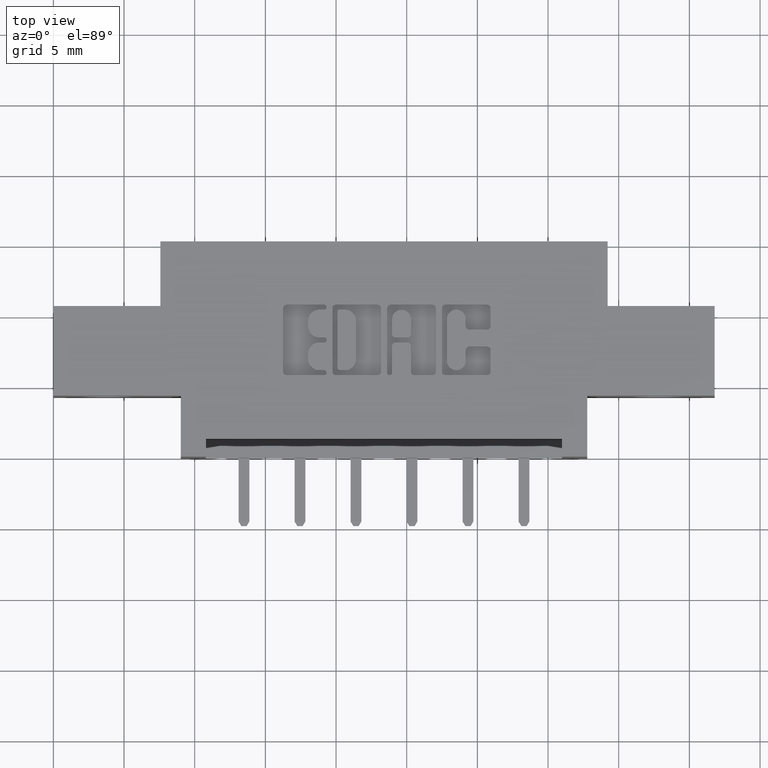
[diagram: clean part render]
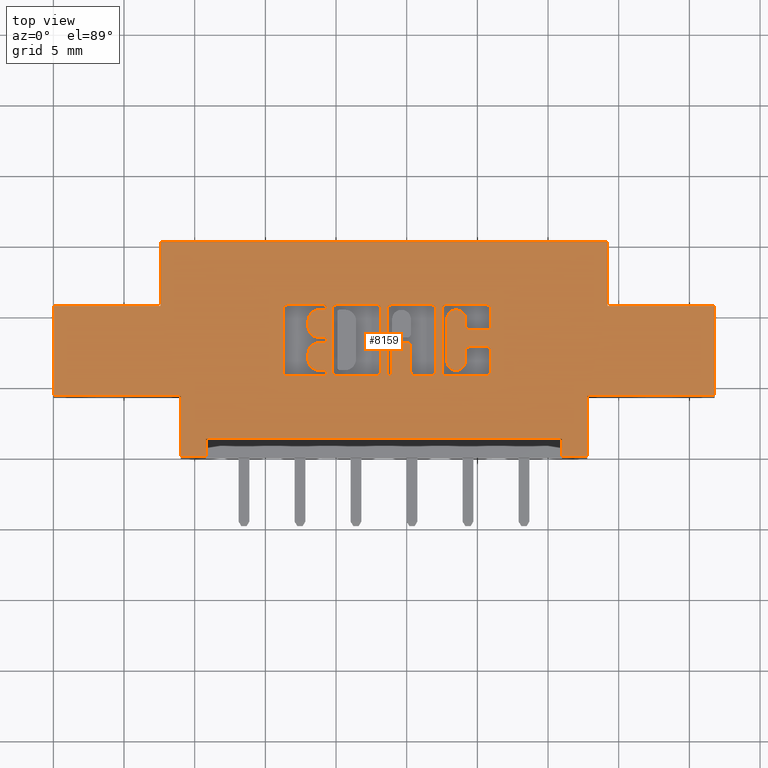
[diagram: same view with one face highlighted and labeled with its STEP entity id]
A machine part, top view. The second image highlights one B-rep face of the part: STEP entity #8159.
In plain terms, the highlighted planar face has unit normal (0, 0, -1).
Its self-contained STEP definition (entity closure, byte-faithful):
#5 = CARTESIAN_POINT ( 'NONE',  ( 1.055229290037010800, 0.2268432979619840200, 0.0000000000000000000 ) ) ;
#12 = EDGE_CURVE ( 'NONE', #7032, #9618, #5018, .T. ) ;
#17 = CIRCLE ( 'NONE', #453, 0.02625691779518022500 ) ;
#20 = CARTESIAN_POINT ( 'NONE',  ( 1.065044960240807000, 0.0000000000000000000, 0.0000000000000000000 ) ) ;
#40 = DIRECTION ( 'NONE',  ( 1.000000000000000000, 0.0000000000000000000, 0.0000000000000000000 ) ) ;
#55 = CARTESIAN_POINT ( 'NONE',  ( 0.9124112885716693100, 0.0000000000000000000, 0.0000000000000000000 ) ) ;
#59 = CARTESIAN_POINT ( 'NONE',  ( 1.095964321382818700, 0.0000000000000000000, 0.0000000000000000000 ) ) ;
#103 = CARTESIAN_POINT ( 'NONE',  ( 0.7541336065353357900, 0.2337142671046473500, 0.0000000000000000000 ) ) ;
#122 = CARTESIAN_POINT ( 'NONE',  ( 0.0000000000000000000, 0.2268432979619840200, 0.0000000000000000000 ) ) ;
#132 = EDGE_CURVE ( 'NONE', #8738, #8629, #2359, .T. ) ;
#146 = VERTEX_POINT ( 'NONE', #2982 ) ;
#148 = CARTESIAN_POINT ( 'NONE',  ( -0.0000000000000000000, 0.2268432979619826000, 0.0000000000000000000 ) ) ;
#152 = VERTEX_POINT ( 'NONE', #4583 ) ;
#158 = CARTESIAN_POINT ( 'NONE',  ( 0.9958444853039849500, 0.2366589681657872400, 0.0000000000000000000 ) ) ;
#174 = LINE ( 'NONE', #2364, #4251 ) ;
#184 = CARTESIAN_POINT ( 'NONE',  ( 0.7406370600050843400, 0.3181290308573562200, 0.0000000000000000000 ) ) ;
#199 = DIRECTION ( 'NONE',  ( 1.000000000000000000, 0.0000000000000000000, 0.0000000000000000000 ) ) ;
#225 = VERTEX_POINT ( 'NONE', #7214 ) ;
#235 = ORIENTED_EDGE ( 'NONE', *, *, #8944, .F. ) ;
#239 = DIRECTION ( 'NONE',  ( 1.000000000000000000, 0.0000000000000000000, 0.0000000000000000000 ) ) ;
#279 = ORIENTED_EDGE ( 'NONE', *, *, #12, .F. ) ;
#284 = DIRECTION ( 'NONE',  ( 1.000000000000000000, 0.0000000000000000000, 0.0000000000000000000 ) ) ;
#303 = VERTEX_POINT ( 'NONE', #8810 ) ;
#311 = AXIS2_PLACEMENT_3D ( 'NONE', #1815, #8325, #239 ) ;
#327 = ORIENTED_EDGE ( 'NONE', *, *, #3253, .F. ) ;
#379 = DIRECTION ( 'NONE',  ( 0.0000000000000000000, -1.000000000000000000, 0.0000000000000000000 ) ) ;
#388 = DIRECTION ( 'NONE',  ( 1.000000000000000000, 0.0000000000000000000, 0.0000000000000000000 ) ) ;
#397 = DIRECTION ( 'NONE',  ( -0.0000000000000000000, 0.0000000000000000000, 1.000000000000000000 ) ) ;
#410 = VERTEX_POINT ( 'NONE', #10411 ) ;
#424 = LINE ( 'NONE', #7182, #6921 ) ;
#447 = DIRECTION ( 'NONE',  ( -1.000000000000000000, 0.0000000000000000000, -2.449293598294705900E-016 ) ) ;
#453 = AXIS2_PLACEMENT_3D ( 'NONE', #10469, #3927, #6344 ) ;
#456 = VERTEX_POINT ( 'NONE', #3846 ) ;
#499 = CARTESIAN_POINT ( 'NONE',  ( 1.005660155507788200, 0.2366589681657872400, 0.0000000000000000000 ) ) ;
#503 = CARTESIAN_POINT ( 'NONE',  ( 0.9025956183678282000, 0.4133410318342093900, 0.0000000000000000000 ) ) ;
#507 = VECTOR ( 'NONE', #1535, 39.37007874015748100 ) ;
#519 = ORIENTED_EDGE ( 'NONE', *, *, #6554, .F. ) ;
#540 = VECTOR ( 'NONE', #3876, 39.37007874015748100 ) ;
#565 = CIRCLE ( 'NONE', #7960, 0.02625691779517367100 ) ;
#572 = CARTESIAN_POINT ( 'NONE',  ( 0.6498421106199383500, 0.4231567020380321300, 0.0000000000000000000 ) ) ;
#583 = VERTEX_POINT ( 'NONE', #8284 ) ;
#602 = CARTESIAN_POINT ( 'NONE',  ( 0.9124112885716693100, 0.2366589681657893500, 0.0000000000000000000 ) ) ;
#621 = DIRECTION ( 'NONE',  ( -0.0000000000000000000, 0.0000000000000000000, 1.000000000000000000 ) ) ;
#622 = VERTEX_POINT ( 'NONE', #8429 ) ;
#628 = AXIS2_PLACEMENT_3D ( 'NONE', #7436, #9047, #4157 ) ;
#658 = CARTESIAN_POINT ( 'NONE',  ( 1.092038053301299700, 0.4231567020380504500, 0.0000000000000000000 ) ) ;
#692 = VECTOR ( 'NONE', #9816, 39.37007874015748100 ) ;
#774 = VECTOR ( 'NONE', #7861, 39.37007874015748100 ) ;
#782 = DIRECTION ( 'NONE',  ( 1.000000000000000000, 0.0000000000000000000, 0.0000000000000000000 ) ) ;
#789 = VERTEX_POINT ( 'NONE', #7084 ) ;
#803 = ORIENTED_EDGE ( 'NONE', *, *, #3061, .F. ) ;
#811 = CIRCLE ( 'NONE', #2306, 0.03141014465218178200 ) ;
#814 = ORIENTED_EDGE ( 'NONE', *, *, #5875, .F. ) ;
#819 = CARTESIAN_POINT ( 'NONE',  ( 0.7541336065353357900, 0.2337142671046473500, 0.0000000000000000000 ) ) ;
#855 = VERTEX_POINT ( 'NONE', #5491 ) ;
#857 = DIRECTION ( 'NONE',  ( -0.0000000000000000000, 0.0000000000000000000, 1.000000000000000000 ) ) ;
#877 = AXIS2_PLACEMENT_3D ( 'NONE', #8940, #5756, #8187 ) ;
#896 = EDGE_CURVE ( 'NONE', #5455, #8738, #8952, .T. ) ;
#903 = DIRECTION ( 'NONE',  ( -0.0000000000000000000, 0.0000000000000000000, 1.000000000000000000 ) ) ;
#910 = VECTOR ( 'NONE', #8292, 39.37007874015748100 ) ;
#964 = EDGE_CURVE ( 'NONE', #7929, #9888, #5743, .T. ) ;
#972 = CARTESIAN_POINT ( 'NONE',  ( 0.7092269153529280300, 0.2719953808994897700, 0.0000000000000000000 ) ) ;
#974 = DIRECTION ( 'NONE',  ( -0.0000000000000000000, 0.0000000000000000000, 1.000000000000000000 ) ) ;
#1001 = ORIENTED_EDGE ( 'NONE', *, *, #10055, .T. ) ;
#1018 = DIRECTION ( 'NONE',  ( -0.0000000000000000000, 0.0000000000000000000, 1.000000000000000000 ) ) ;
#1037 = CIRCLE ( 'NONE', #7158, 0.009815670203811535700 ) ;
#1038 = CARTESIAN_POINT ( 'NONE',  ( 1.148478156973166100, 0.0000000000000000000, 0.0000000000000000000 ) ) ;
#1098 = VERTEX_POINT ( 'NONE', #184 ) ;
#1121 = DIRECTION ( 'NONE',  ( 0.0000000000000000000, -1.000000000000000000, 0.0000000000000000000 ) ) ;
#1137 = DIRECTION ( 'NONE',  ( -0.0000000000000000000, -1.000000000000000000, -0.0000000000000000000 ) ) ;
#1161 = DIRECTION ( 'NONE',  ( 1.000000000000000000, -0.0000000000000000000, -0.0000000000000000000 ) ) ;
#1174 = ORIENTED_EDGE ( 'NONE', *, *, #8277, .T. ) ;
#1183 = CIRCLE ( 'NONE', #6460, 0.009815670203841039800 ) ;
#1192 = ORIENTED_EDGE ( 'NONE', *, *, #5825, .F. ) ;
#1203 = AXIS2_PLACEMENT_3D ( 'NONE', #8840, #621, #1433 ) ;
#1209 = VECTOR ( 'NONE', #8872, 39.37007874015748100 ) ;
#1223 = ORIENTED_EDGE ( 'NONE', *, *, #7793, .F. ) ;
#1265 = DIRECTION ( 'NONE',  ( 1.000000000000000000, 0.0000000000000000000, 0.0000000000000000000 ) ) ;
#1270 = CARTESIAN_POINT ( 'NONE',  ( 1.842000000000000700, 0.4199999999999999800, 0.0000000000000000000 ) ) ;
#1274 = VECTOR ( 'NONE', #6620, 39.37007874015748100 ) ;
#1290 = CARTESIAN_POINT ( 'NONE',  ( 1.207862961706167400, 0.3637718973050380600, 0.0000000000000000000 ) ) ;
#1307 = VECTOR ( 'NONE', #5060, 39.37007874015748100 ) ;
#1312 = CARTESIAN_POINT ( 'NONE',  ( 0.7092269153529097100, 0.3780046191005191900, 0.0000000000000000000 ) ) ;
#1315 = ORIENTED_EDGE ( 'NONE', *, *, #10179, .T. ) ;
#1329 = CARTESIAN_POINT ( 'NONE',  ( 1.092038053301265700, 0.2366589681657893500, 0.0000000000000000000 ) ) ;
#1339 = CARTESIAN_POINT ( 'NONE',  ( 1.148478156973166100, 0.3831578454992593000, 0.0000000000000000000 ) ) ;
#1355 = DIRECTION ( 'NONE',  ( 1.000000000000000000, 0.0000000000000000000, 0.0000000000000000000 ) ) ;
#1383 = CARTESIAN_POINT ( 'NONE',  ( 0.3549999999999999800, 0.1699999999999999800, 0.0000000000000000000 ) ) ;
#1415 = CARTESIAN_POINT ( 'NONE',  ( 1.217678631909940400, 0.2965345564089698100, 0.0000000000000000000 ) ) ;
#1417 = CARTESIAN_POINT ( 'NONE',  ( 0.7610045756779737500, 0.3250000000000197700, 0.0000000000000000000 ) ) ;
#1433 = DIRECTION ( 'NONE',  ( 1.000000000000000000, 0.0000000000000000000, 0.0000000000000000000 ) ) ;
#1468 = VERTEX_POINT ( 'NONE', #3889 ) ;
#1493 = ORIENTED_EDGE ( 'NONE', *, *, #9067, .T. ) ;
#1502 = ORIENTED_EDGE ( 'NONE', *, *, #4782, .F. ) ;
#1515 = ORIENTED_EDGE ( 'NONE', *, *, #7516, .T. ) ;
#1521 = AXIS2_PLACEMENT_3D ( 'NONE', #1818, #857, #3428 ) ;
#1535 = DIRECTION ( 'NONE',  ( 1.000000000000000000, 0.0000000000000000000, 0.0000000000000000000 ) ) ;
#1537 = DIRECTION ( 'NONE',  ( 0.0000000000000000000, -1.000000000000000000, 0.0000000000000000000 ) ) ;
#1609 = ORIENTED_EDGE ( 'NONE', *, *, #8912, .T. ) ;
#1612 = CARTESIAN_POINT ( 'NONE',  ( 0.4249999999999999300, 0.05000000000000000300, 0.0000000000000000000 ) ) ;
#1619 = ORIENTED_EDGE ( 'NONE', *, *, #132, .F. ) ;
#1637 = AXIS2_PLACEMENT_3D ( 'NONE', #5815, #8249, #40 ) ;
#1657 = DIRECTION ( 'NONE',  ( -0.0000000000000000000, 0.0000000000000000000, 1.000000000000000000 ) ) ;
#1660 = EDGE_CURVE ( 'NONE', #8125, #10504, #5220, .T. ) ;
#1690 = EDGE_CURVE ( 'NONE', #6345, #10505, #9055, .T. ) ;
#1702 = VERTEX_POINT ( 'NONE', #6485 ) ;
#1726 = DIRECTION ( 'NONE',  ( 1.000000000000000000, 0.0000000000000000000, 0.0000000000000000000 ) ) ;
#1757 = ORIENTED_EDGE ( 'NONE', *, *, #6433, .F. ) ;
#1800 = DIRECTION ( 'NONE',  ( 1.000000000000000000, 0.0000000000000000000, 0.0000000000000000000 ) ) ;
#1815 = CARTESIAN_POINT ( 'NONE',  ( 0.7541336065353102500, 0.3250000000000197700, 0.0000000000000000000 ) ) ;
#1818 = CARTESIAN_POINT ( 'NONE',  ( 0.7867707099630104600, 0.4133410318342095000, 0.0000000000000000000 ) ) ;
#1819 = CIRCLE ( 'NONE', #9751, 0.009815670203840084000 ) ;
#1856 = CARTESIAN_POINT ( 'NONE',  ( 0.9394043816321276900, 0.4231567020380060400, 0.0000000000000000000 ) ) ;
#1899 = CARTESIAN_POINT ( 'NONE',  ( 1.217678631909940400, 0.2366589681657823900, 0.0000000000000000000 ) ) ;
#1916 = CARTESIAN_POINT ( 'NONE',  ( 1.417000000000000700, 0.05000000000000000300, 0.0000000000000000000 ) ) ;
#1927 = DIRECTION ( 'NONE',  ( -0.0000000000000000000, 0.0000000000000000000, 1.000000000000000000 ) ) ;
#1933 = PLANE ( 'NONE',  #5916 ) ;
#1957 = FACE_BOUND ( 'NONE', #10015, .T. ) ;
#1961 = DIRECTION ( 'NONE',  ( -0.0000000000000000000, 0.0000000000000000000, 1.000000000000000000 ) ) ;
#1967 = LINE ( 'NONE', #6598, #7773 ) ;
#1970 = CIRCLE ( 'NONE', #877, 0.009815670203806754800 ) ;
#1973 = CARTESIAN_POINT ( 'NONE',  ( 0.7610045756779999500, 0.4162857328953856700, 0.0000000000000000000 ) ) ;
#2013 = CARTESIAN_POINT ( 'NONE',  ( 0.9025956183678963700, 0.4231567020380504500, 0.0000000000000000000 ) ) ;
#2040 = LINE ( 'NONE', #6286, #5324 ) ;
#2051 = DIRECTION ( 'NONE',  ( 1.000000000000000000, 0.0000000000000000000, 0.0000000000000000000 ) ) ;
#2093 = DIRECTION ( 'NONE',  ( -0.0000000000000000000, 0.0000000000000000000, 1.000000000000000000 ) ) ;
#2105 = CARTESIAN_POINT ( 'NONE',  ( 1.842000000000000700, 0.1699999999999999800, 2.255799404029425300E-016 ) ) ;
#2110 = CARTESIAN_POINT ( 'NONE',  ( 1.122221239177992400, 0.3831578459575290000, 0.0000000000000000000 ) ) ;
#2114 = LINE ( 'NONE', #4842, #9742 ) ;
#2118 = VERTEX_POINT ( 'NONE', #5360 ) ;
#2140 = VERTEX_POINT ( 'NONE', #6256 ) ;
#2159 = ORIENTED_EDGE ( 'NONE', *, *, #3978, .F. ) ;
#2162 = AXIS2_PLACEMENT_3D ( 'NONE', #5732, #903, #5873 ) ;
#2177 = LINE ( 'NONE', #7135, #7649 ) ;
#2206 = EDGE_CURVE ( 'NONE', #10005, #9884, #7143, .T. ) ;
#2215 = FACE_BOUND ( 'NONE', #5042, .T. ) ;
#2226 = EDGE_CURVE ( 'NONE', #5188, #3262, #8924, .T. ) ;
#2244 = DIRECTION ( 'NONE',  ( -1.000000000000000000, 0.0000000000000000000, 0.0000000000000000000 ) ) ;
#2249 = LINE ( 'NONE', #4843, #7714 ) ;
#2264 = CARTESIAN_POINT ( 'NONE',  ( 0.6400264404161156700, 0.0000000000000000000, 0.0000000000000000000 ) ) ;
#2272 = VERTEX_POINT ( 'NONE', #2434 ) ;
#2304 = CARTESIAN_POINT ( 'NONE',  ( 0.2980000000000001000, 0.4199999999999999800, 0.0000000000000000000 ) ) ;
#2306 = AXIS2_PLACEMENT_3D ( 'NONE', #4015, #3919, #8909 ) ;
#2335 = ORIENTED_EDGE ( 'NONE', *, *, #6619, .T. ) ;
#2339 = CIRCLE ( 'NONE', #2393, 0.006870969142657995000 ) ;
#2348 = DIRECTION ( 'NONE',  ( -0.0000000000000000000, -1.000000000000000000, -0.0000000000000000000 ) ) ;
#2355 = AXIS2_PLACEMENT_3D ( 'NONE', #4733, #7258, #3917 ) ;
#2359 = LINE ( 'NONE', #6134, #3739 ) ;
#2364 = CARTESIAN_POINT ( 'NONE',  ( 1.148478156973179200, 0.0000000000000000000, 0.0000000000000000000 ) ) ;
#2377 = AXIS2_PLACEMENT_3D ( 'NONE', #6787, #1927, #7512 ) ;
#2393 = AXIS2_PLACEMENT_3D ( 'NONE', #4133, #9915, #1800 ) ;
#2402 = ORIENTED_EDGE ( 'NONE', *, *, #5543, .F. ) ;
#2406 = CARTESIAN_POINT ( 'NONE',  ( 0.7092269153529097100, 0.0000000000000000000, 0.0000000000000000000 ) ) ;
#2433 = DIRECTION ( 'NONE',  ( 1.000000000000000000, 0.0000000000000000000, 0.0000000000000000000 ) ) ;
#2434 = CARTESIAN_POINT ( 'NONE',  ( 1.065044960240807000, 0.4133410318342003500, 0.0000000000000000000 ) ) ;
#2446 = CARTESIAN_POINT ( 'NONE',  ( 1.217678631909972400, 0.4133410318341942400, 0.0000000000000000000 ) ) ;
#2476 = VERTEX_POINT ( 'NONE', #1856 ) ;
#2492 = VERTEX_POINT ( 'NONE', #9257 ) ;
#2549 = DIRECTION ( 'NONE',  ( 1.000000000000000000, 0.0000000000000000000, 0.0000000000000000000 ) ) ;
#2572 = VECTOR ( 'NONE', #8096, 39.37007874015748100 ) ;
#2589 = DIRECTION ( 'NONE',  ( -0.0000000000000000000, 0.0000000000000000000, 1.000000000000000000 ) ) ;
#2594 = ORIENTED_EDGE ( 'NONE', *, *, #3560, .T. ) ;
#2607 = CARTESIAN_POINT ( 'NONE',  ( 0.7406370600051257500, 0.3780046191005191900, 0.0000000000000000000 ) ) ;
#2626 = VECTOR ( 'NONE', #4975, 39.37007874015748100 ) ;
#2661 = LINE ( 'NONE', #1916, #6587 ) ;
#2666 = ORIENTED_EDGE ( 'NONE', *, *, #4337, .F. ) ;
#2701 = CARTESIAN_POINT ( 'NONE',  ( -1.123269580619635500E-014, 0.3181290308573143700, 0.0000000000000000000 ) ) ;
#2745 = VERTEX_POINT ( 'NONE', #9595 ) ;
#2794 = ORIENTED_EDGE ( 'NONE', *, *, #9155, .F. ) ;
#2806 = CARTESIAN_POINT ( 'NONE',  ( 1.842000000000000700, 0.4199999999999999800, 0.0000000000000000000 ) ) ;
#2818 = LINE ( 'NONE', #5067, #9432 ) ;
#2825 = LINE ( 'NONE', #10462, #6505 ) ;
#2842 = CIRCLE ( 'NONE', #9737, 0.006870969142662229500 ) ;
#2883 = EDGE_CURVE ( 'NONE', #4883, #8522, #6172, .T. ) ;
#2913 = LINE ( 'NONE', #2701, #8379 ) ;
#2914 = DIRECTION ( 'NONE',  ( 1.000000000000000000, 0.0000000000000000000, 0.0000000000000000000 ) ) ;
#2926 = VERTEX_POINT ( 'NONE', #9672 ) ;
#2933 = VECTOR ( 'NONE', #8515, 39.37007874015748100 ) ;
#2953 = EDGE_CURVE ( 'NONE', #2476, #303, #7528, .T. ) ;
#2982 = CARTESIAN_POINT ( 'NONE',  ( 1.544000000000000700, 0.4199999999999999800, 0.0000000000000000000 ) ) ;
#2985 = CIRCLE ( 'NONE', #1637, 0.009815670203796920600 ) ;
#3007 = CARTESIAN_POINT ( 'NONE',  ( 0.7406370600051257500, 0.4094147637527351100, 0.0000000000000000000 ) ) ;
#3029 = CARTESIAN_POINT ( 'NONE',  ( 0.4249999999999999300, 0.0000000000000000000, 0.0000000000000000000 ) ) ;
#3050 = ORIENTED_EDGE ( 'NONE', *, *, #10285, .F. ) ;
#3061 = EDGE_CURVE ( 'NONE', #7975, #4883, #4301, .T. ) ;
#3124 = CARTESIAN_POINT ( 'NONE',  ( -1.634053534412011400E-015, 0.2268432979619796900, 0.0000000000000000000 ) ) ;
#3170 = ORIENTED_EDGE ( 'NONE', *, *, #9017, .T. ) ;
#3184 = CIRCLE ( 'NONE', #628, 0.009815670203803203800 ) ;
#3204 = ORIENTED_EDGE ( 'NONE', *, *, #1690, .T. ) ;
#3206 = AXIS2_PLACEMENT_3D ( 'NONE', #9133, #974, #284 ) ;
#3217 = VECTOR ( 'NONE', #2348, 39.37007874015748100 ) ;
#3224 = CARTESIAN_POINT ( 'NONE',  ( 0.4249999999999999300, 0.05000000000000000300, 0.0000000000000000000 ) ) ;
#3228 = CARTESIAN_POINT ( 'NONE',  ( 1.207862961706134500, 0.2268432979619826000, 0.0000000000000000000 ) ) ;
#3253 = EDGE_CURVE ( 'NONE', #6751, #3757, #5568, .T. ) ;
#3256 = LINE ( 'NONE', #10255, #4126 ) ;
#3262 = VERTEX_POINT ( 'NONE', #4463 ) ;
#3316 = CARTESIAN_POINT ( 'NONE',  ( 1.417000000000000700, 0.0000000000000000000, 0.0000000000000000000 ) ) ;
#3320 = CARTESIAN_POINT ( 'NONE',  ( 0.7406370600050843400, 0.3632811137948577800, 0.0000000000000000000 ) ) ;
#3342 = ORIENTED_EDGE ( 'NONE', *, *, #5599, .F. ) ;
#3366 = EDGE_LOOP ( 'NONE', ( #3408, #6548, #3204, #10113, #7119, #6679, #10164, #1493, #4556, #8523, #9505, #814, #1223, #8889, #803, #2666, #2159, #3997, #1502, #4044, #4739 ) ) ;
#3381 = VERTEX_POINT ( 'NONE', #5452 ) ;
#3408 = ORIENTED_EDGE ( 'NONE', *, *, #4810, .T. ) ;
#3428 = DIRECTION ( 'NONE',  ( 1.000000000000000000, 0.0000000000000000000, 0.0000000000000000000 ) ) ;
#3431 = DIRECTION ( 'NONE',  ( -0.0000000000000000000, 0.0000000000000000000, 1.000000000000000000 ) ) ;
#3451 = CARTESIAN_POINT ( 'NONE',  ( 0.9531463199174504700, 0.3181290308573480100, 0.0000000000000000000 ) ) ;
#3462 = CARTESIAN_POINT ( 'NONE',  ( 1.092038053301299700, 0.4133410318342095000, 0.0000000000000000000 ) ) ;
#3476 = LINE ( 'NONE', #5760, #1307 ) ;
#3513 = LINE ( 'NONE', #9406, #6814 ) ;
#3555 = EDGE_CURVE ( 'NONE', #9520, #6694, #2913, .T. ) ;
#3560 = EDGE_CURVE ( 'NONE', #7929, #10005, #2661, .T. ) ;
#3576 = VECTOR ( 'NONE', #5225, 39.37007874015748100 ) ;
#3694 = EDGE_CURVE ( 'NONE', #4973, #8992, #6958, .T. ) ;
#3707 = CARTESIAN_POINT ( 'NONE',  ( -0.0000000000000000000, 0.3539562271012330300, 0.0000000000000000000 ) ) ;
#3708 = EDGE_CURVE ( 'NONE', #225, #3381, #10016, .T. ) ;
#3711 = LINE ( 'NONE', #9124, #910 ) ;
#3729 = VECTOR ( 'NONE', #6168, 39.37007874015748100 ) ;
#3731 = VERTEX_POINT ( 'NONE', #8672 ) ;
#3739 = VECTOR ( 'NONE', #447, 39.37007874015748100 ) ;
#3755 = EDGE_LOOP ( 'NONE', ( #7242, #7796, #1619, #4019, #4795, #10280, #519, #6975, #4032, #9219, #6701, #1609, #4014, #8459, #7605, #2594 ) ) ;
#3757 = VERTEX_POINT ( 'NONE', #6994 ) ;
#3794 = DIRECTION ( 'NONE',  ( -0.0000000000000000000, 0.0000000000000000000, 1.000000000000000000 ) ) ;
#3846 = CARTESIAN_POINT ( 'NONE',  ( 0.0000000000000000000, 0.4199999999999999800, 0.0000000000000000000 ) ) ;
#3860 = LINE ( 'NONE', #4542, #3729 ) ;
#3866 = DIRECTION ( 'NONE',  ( 1.000000000000000000, 0.0000000000000000000, 0.0000000000000000000 ) ) ;
#3876 = DIRECTION ( 'NONE',  ( 0.0000000000000000000, 1.000000000000000000, -0.0000000000000000000 ) ) ;
#3889 = CARTESIAN_POINT ( 'NONE',  ( 0.6400264404161156700, 0.4133410318342095000, 0.0000000000000000000 ) ) ;
#3890 = VERTEX_POINT ( 'NONE', #7957 ) ;
#3917 = DIRECTION ( 'NONE',  ( 1.000000000000000000, 0.0000000000000000000, 0.0000000000000000000 ) ) ;
#3919 = DIRECTION ( 'NONE',  ( -0.0000000000000000000, 0.0000000000000000000, 1.000000000000000000 ) ) ;
#3927 = DIRECTION ( 'NONE',  ( -0.0000000000000000000, 0.0000000000000000000, 1.000000000000000000 ) ) ;
#3939 = CIRCLE ( 'NONE', #1521, 0.009815670203840902800 ) ;
#3953 = CARTESIAN_POINT ( 'NONE',  ( 0.9433306497136472200, 0.3083133606535449800, 0.0000000000000000000 ) ) ;
#3978 = EDGE_CURVE ( 'NONE', #6314, #1468, #6068, .T. ) ;
#3997 = ORIENTED_EDGE ( 'NONE', *, *, #5542, .F. ) ;
#4002 = DIRECTION ( 'NONE',  ( -1.000000000000000000, -0.0000000000000000000, -0.0000000000000000000 ) ) ;
#4003 = DIRECTION ( 'NONE',  ( -0.0000000000000000000, 1.000000000000000000, -0.0000000000000000000 ) ) ;
#4014 = ORIENTED_EDGE ( 'NONE', *, *, #5451, .T. ) ;
#4015 = CARTESIAN_POINT ( 'NONE',  ( 0.7406370600051098700, 0.2719953808994897700, 0.0000000000000000000 ) ) ;
#4019 = ORIENTED_EDGE ( 'NONE', *, *, #896, .F. ) ;
#4032 = ORIENTED_EDGE ( 'NONE', *, *, #6267, .F. ) ;
#4044 = ORIENTED_EDGE ( 'NONE', *, *, #9588, .F. ) ;
#4077 = VERTEX_POINT ( 'NONE', #972 ) ;
#4110 = CARTESIAN_POINT ( 'NONE',  ( 1.207862961706132300, 0.4133410318342103400, 0.0000000000000000000 ) ) ;
#4126 = VECTOR ( 'NONE', #8696, 39.37007874015748100 ) ;
#4133 = CARTESIAN_POINT ( 'NONE',  ( 0.9364596805709872700, 0.2337142671046473500, 0.0000000000000000000 ) ) ;
#4154 = ORIENTED_EDGE ( 'NONE', *, *, #9678, .F. ) ;
#4157 = DIRECTION ( 'NONE',  ( 1.000000000000000000, 0.0000000000000000000, 0.0000000000000000000 ) ) ;
#4203 = VECTOR ( 'NONE', #8027, 39.37007874015748100 ) ;
#4251 = VECTOR ( 'NONE', #1537, 39.37007874015748100 ) ;
#4268 = DIRECTION ( 'NONE',  ( -1.000000000000000000, -1.189163988687022500E-013, 0.0000000000000000000 ) ) ;
#4291 = EDGE_CURVE ( 'NONE', #4077, #7216, #8996, .T. ) ;
#4301 = CIRCLE ( 'NONE', #2162, 0.009815670203805798900 ) ;
#4337 = EDGE_CURVE ( 'NONE', #1468, #7975, #5919, .T. ) ;
#4343 = DIRECTION ( 'NONE',  ( -0.0000000000000000000, 0.0000000000000000000, 1.000000000000000000 ) ) ;
#4375 = VERTEX_POINT ( 'NONE', #5363 ) ;
#4376 = EDGE_CURVE ( 'NONE', #8629, #9884, #3513, .T. ) ;
#4385 = LINE ( 'NONE', #122, #692 ) ;
#4403 = ORIENTED_EDGE ( 'NONE', *, *, #9034, .F. ) ;
#4441 = AXIS2_PLACEMENT_3D ( 'NONE', #5056, #3431, #5974 ) ;
#4463 = CARTESIAN_POINT ( 'NONE',  ( 1.065044960240807000, 0.2366589681657802800, 0.0000000000000000000 ) ) ;
#4499 = EDGE_CURVE ( 'NONE', #3890, #622, #2249, .T. ) ;
#4502 = VECTOR ( 'NONE', #4268, 39.37007874015748100 ) ;
#4523 = EDGE_CURVE ( 'NONE', #6345, #8205, #7844, .T. ) ;
#4531 = CARTESIAN_POINT ( 'NONE',  ( 0.9025956183678624000, 0.2268432979619826000, 0.0000000000000000000 ) ) ;
#4542 = CARTESIAN_POINT ( 'NONE',  ( 0.0000000000000000000, 0.4231567020380321300, 0.0000000000000000000 ) ) ;
#4554 = CARTESIAN_POINT ( 'NONE',  ( 0.7610045756779980600, 0.2337142671046473500, 0.0000000000000000000 ) ) ;
#4556 = ORIENTED_EDGE ( 'NONE', *, *, #4291, .F. ) ;
#4566 = DIRECTION ( 'NONE',  ( -1.000000000000000000, 0.0000000000000000000, -0.0000000000000000000 ) ) ;
#4581 = LINE ( 'NONE', #6142, #6616 ) ;
#4583 = CARTESIAN_POINT ( 'NONE',  ( 0.7541336065353102500, 0.3318709691426832700, 0.0000000000000000000 ) ) ;
#4611 = DIRECTION ( 'NONE',  ( 1.000000000000000000, 0.0000000000000000000, 0.0000000000000000000 ) ) ;
#4649 = VERTEX_POINT ( 'NONE', #5791 ) ;
#4671 = ORIENTED_EDGE ( 'NONE', *, *, #7239, .T. ) ;
#4673 = CARTESIAN_POINT ( 'NONE',  ( 0.9958444853039849500, 0.0000000000000000000, 0.0000000000000000000 ) ) ;
#4678 = CARTESIAN_POINT ( 'NONE',  ( 0.7092269153529097100, 0.3632811137948577800, 0.0000000000000000000 ) ) ;
#4693 = AXIS2_PLACEMENT_3D ( 'NONE', #2607, #1961, #8290 ) ;
#4723 = CARTESIAN_POINT ( 'NONE',  ( 0.7867707099629762700, 0.2268432979619826000, 0.0000000000000000000 ) ) ;
#4733 = CARTESIAN_POINT ( 'NONE',  ( 1.055229290037010800, 0.2366589681657802800, 0.0000000000000000000 ) ) ;
#4737 = LINE ( 'NONE', #7177, #4203 ) ;
#4738 = EDGE_CURVE ( 'NONE', #2140, #10475, #5656, .T. ) ;
#4739 = ORIENTED_EDGE ( 'NONE', *, *, #4946, .F. ) ;
#4760 = VERTEX_POINT ( 'NONE', #5151 ) ;
#4775 = LINE ( 'NONE', #55, #2626 ) ;
#4782 = EDGE_CURVE ( 'NONE', #8118, #855, #6934, .T. ) ;
#4795 = ORIENTED_EDGE ( 'NONE', *, *, #8743, .F. ) ;
#4797 = DIRECTION ( 'NONE',  ( 1.000000000000000000, 7.203446383881654600E-015, 0.0000000000000000000 ) ) ;
#4810 = EDGE_CURVE ( 'NONE', #9791, #8205, #10373, .T. ) ;
#4822 = EDGE_LOOP ( 'NONE', ( #8346, #8129, #7345, #279, #8341, #8869, #8104, #8849 ) ) ;
#4842 = CARTESIAN_POINT ( 'NONE',  ( 0.0000000000000000000, 0.3318709691426832700, 0.0000000000000000000 ) ) ;
#4843 = CARTESIAN_POINT ( 'NONE',  ( 0.7769550397591695700, 0.0000000000000000000, 0.0000000000000000000 ) ) ;
#4864 = CARTESIAN_POINT ( 'NONE',  ( 0.7406370600051098700, 0.2405852362473080200, 0.0000000000000000000 ) ) ;
#4870 = DIRECTION ( 'NONE',  ( -1.000000000000000000, 0.0000000000000000000, 0.0000000000000000000 ) ) ;
#4882 = EDGE_CURVE ( 'NONE', #9010, #7301, #565, .T. ) ;
#4883 = VERTEX_POINT ( 'NONE', #7729 ) ;
#4898 = ORIENTED_EDGE ( 'NONE', *, *, #3555, .T. ) ;
#4922 = DIRECTION ( 'NONE',  ( -0.0000000000000000000, 0.0000000000000000000, 1.000000000000000000 ) ) ;
#4923 = DIRECTION ( 'NONE',  ( -1.000000000000000000, 0.0000000000000000000, 0.0000000000000000000 ) ) ;
#4943 = ORIENTED_EDGE ( 'NONE', *, *, #8413, .F. ) ;
#4946 = EDGE_CURVE ( 'NONE', #9791, #789, #8975, .T. ) ;
#4973 = VERTEX_POINT ( 'NONE', #1415 ) ;
#4975 = DIRECTION ( 'NONE',  ( 0.0000000000000000000, 1.000000000000000000, -0.0000000000000000000 ) ) ;
#5018 = LINE ( 'NONE', #148, #5264 ) ;
#5032 = VERTEX_POINT ( 'NONE', #658 ) ;
#5042 = EDGE_LOOP ( 'NONE', ( #7939, #4154, #7567, #6274, #9453, #6569, #6822, #1757, #10479, #235, #8628, #4403, #5502, #2794, #2402, #3050, #8742, #1192, #4943, #5646 ) ) ;
#5056 = CARTESIAN_POINT ( 'NONE',  ( 0.7406370600050843400, 0.2867188862051999700, 0.0000000000000000000 ) ) ;
#5060 = DIRECTION ( 'NONE',  ( -0.0000000000000000000, 1.000000000000000000, -0.0000000000000000000 ) ) ;
#5067 = CARTESIAN_POINT ( 'NONE',  ( 0.0000000000000000000, 0.1699999999999999800, 0.0000000000000000000 ) ) ;
#5135 = EDGE_CURVE ( 'NONE', #9279, #583, #424, .T. ) ;
#5151 = CARTESIAN_POINT ( 'NONE',  ( 1.148478156973179200, 0.2965345564089680900, 0.0000000000000000000 ) ) ;
#5188 = VERTEX_POINT ( 'NONE', #5 ) ;
#5197 = ORIENTED_EDGE ( 'NONE', *, *, #2953, .F. ) ;
#5220 = LINE ( 'NONE', #9726, #2572 ) ;
#5225 = DIRECTION ( 'NONE',  ( 1.000000000000000000, 0.0000000000000000000, 0.0000000000000000000 ) ) ;
#5264 = VECTOR ( 'NONE', #7540, 39.37007874015748100 ) ;
#5324 = VECTOR ( 'NONE', #8681, 39.37007874015748100 ) ;
#5336 = DIRECTION ( 'NONE',  ( -0.0000000000000000000, 0.0000000000000000000, 1.000000000000000000 ) ) ;
#5343 = CARTESIAN_POINT ( 'NONE',  ( -0.0000000000000000000, 0.4231567020380060400, 0.0000000000000000000 ) ) ;
#5360 = CARTESIAN_POINT ( 'NONE',  ( 0.7541336064154146000, 0.2405852362473096300, 0.0000000000000000000 ) ) ;
#5362 = CARTESIAN_POINT ( 'NONE',  ( 0.0000000000000000000, 0.4199999999999999800, 0.0000000000000000000 ) ) ;
#5363 = CARTESIAN_POINT ( 'NONE',  ( 1.082222383097458900, 0.2366589681657893500, 0.0000000000000000000 ) ) ;
#5366 = DIRECTION ( 'NONE',  ( 0.0000000000000000000, 1.000000000000000000, -0.0000000000000000000 ) ) ;
#5379 = LINE ( 'NONE', #4673, #540 ) ;
#5434 = CARTESIAN_POINT ( 'NONE',  ( 1.158293827176967400, 0.2965345564089689700, 0.0000000000000000000 ) ) ;
#5441 = DIRECTION ( 'NONE',  ( 0.0000000000000000000, 0.0000000000000000000, -1.000000000000000000 ) ) ;
#5451 = EDGE_CURVE ( 'NONE', #7441, #8882, #9967, .T. ) ;
#5452 = CARTESIAN_POINT ( 'NONE',  ( 1.217678631909972400, 0.3637718973050380600, 0.0000000000000000000 ) ) ;
#5455 = VERTEX_POINT ( 'NONE', #2806 ) ;
#5474 = CIRCLE ( 'NONE', #3206, 0.006870969142648433200 ) ;
#5491 = CARTESIAN_POINT ( 'NONE',  ( 0.7541336065353515500, 0.4231567020380321300, 0.0000000000000000000 ) ) ;
#5502 = ORIENTED_EDGE ( 'NONE', *, *, #5788, .F. ) ;
#5527 = EDGE_CURVE ( 'NONE', #10487, #8125, #1183, .T. ) ;
#5542 = EDGE_CURVE ( 'NONE', #855, #6314, #3860, .T. ) ;
#5543 = EDGE_CURVE ( 'NONE', #4375, #7087, #10360, .T. ) ;
#5568 = CIRCLE ( 'NONE', #7750, 0.009815670203803340800 ) ;
#5599 = EDGE_CURVE ( 'NONE', #2272, #8775, #8701, .T. ) ;
#5624 = CARTESIAN_POINT ( 'NONE',  ( 0.6498421106199383500, 0.4133410318342095000, 0.0000000000000000000 ) ) ;
#5625 = CARTESIAN_POINT ( 'NONE',  ( 1.158293827176977600, 0.3539562271012330300, 0.0000000000000000000 ) ) ;
#5646 = ORIENTED_EDGE ( 'NONE', *, *, #6078, .F. ) ;
#5656 = CIRCLE ( 'NONE', #311, 0.006870969142663458500 ) ;
#5658 = VERTEX_POINT ( 'NONE', #3953 ) ;
#5672 = AXIS2_PLACEMENT_3D ( 'NONE', #5434, #7900, #6385 ) ;
#5686 = EDGE_CURVE ( 'NONE', #8948, #9356, #17, .T. ) ;
#5707 = CARTESIAN_POINT ( 'NONE',  ( 1.148478156973179200, 0.2668421540424524300, 0.0000000000000000000 ) ) ;
#5732 = CARTESIAN_POINT ( 'NONE',  ( 0.6498421106199224800, 0.2366589681657893500, 0.0000000000000000000 ) ) ;
#5734 = CARTESIAN_POINT ( 'NONE',  ( 1.095964321382818700, 0.3831578459575290000, 0.0000000000000000000 ) ) ;
#5743 = LINE ( 'NONE', #3224, #7798 ) ;
#5756 = DIRECTION ( 'NONE',  ( -0.0000000000000000000, 0.0000000000000000000, 1.000000000000000000 ) ) ;
#5760 = CARTESIAN_POINT ( 'NONE',  ( 1.544000000000000700, 0.4199999999999999800, 0.0000000000000000000 ) ) ;
#5788 = EDGE_CURVE ( 'NONE', #10536, #6689, #8439, .T. ) ;
#5791 = CARTESIAN_POINT ( 'NONE',  ( 0.0000000000000000000, 0.1699999999999999800, 0.0000000000000000000 ) ) ;
#5815 = CARTESIAN_POINT ( 'NONE',  ( 0.9860288151001880300, 0.3083133606535521900, 0.0000000000000000000 ) ) ;
#5825 = EDGE_CURVE ( 'NONE', #1702, #5032, #9718, .T. ) ;
#5839 = CIRCLE ( 'NONE', #5672, 0.009815670203788042300 ) ;
#5862 = EDGE_CURVE ( 'NONE', #146, #6890, #3476, .T. ) ;
#5873 = DIRECTION ( 'NONE',  ( 1.000000000000000000, 0.0000000000000000000, 0.0000000000000000000 ) ) ;
#5875 = EDGE_CURVE ( 'NONE', #8700, #2118, #2842, .T. ) ;
#5908 = LINE ( 'NONE', #6588, #10501 ) ;
#5916 = AXIS2_PLACEMENT_3D ( 'NONE', #8659, #5441, #4566 ) ;
#5919 = LINE ( 'NONE', #2264, #7966 ) ;
#5927 = CARTESIAN_POINT ( 'NONE',  ( 1.487000000000000800, 0.1699999999999999800, 1.386300176634805000E-016 ) ) ;
#5974 = DIRECTION ( 'NONE',  ( 1.000000000000000000, 0.0000000000000000000, 0.0000000000000000000 ) ) ;
#5982 = CARTESIAN_POINT ( 'NONE',  ( 0.0000000000000000000, 0.0000000000000000000, 0.0000000000000000000 ) ) ;
#5990 = DIRECTION ( 'NONE',  ( 1.000000000000000000, 0.0000000000000000000, 0.0000000000000000000 ) ) ;
#6000 = EDGE_CURVE ( 'NONE', #1098, #2140, #1967, .T. ) ;
#6023 = DIRECTION ( 'NONE',  ( 1.000000000000000000, 0.0000000000000000000, 0.0000000000000000000 ) ) ;
#6068 = CIRCLE ( 'NONE', #8428, 0.009815670203822599700 ) ;
#6078 = EDGE_CURVE ( 'NONE', #3381, #9376, #3256, .T. ) ;
#6118 = DIRECTION ( 'NONE',  ( 0.0000000000000000000, 1.000000000000000000, -0.0000000000000000000 ) ) ;
#6134 = CARTESIAN_POINT ( 'NONE',  ( 1.842000000000000700, 0.1699999999999999800, 2.255799404029425300E-016 ) ) ;
#6142 = CARTESIAN_POINT ( 'NONE',  ( 1.082222383097458900, 0.0000000000000000000, 0.0000000000000000000 ) ) ;
#6148 = LINE ( 'NONE', #8095, #4502 ) ;
#6168 = DIRECTION ( 'NONE',  ( -1.000000000000000000, 0.0000000000000000000, 0.0000000000000000000 ) ) ;
#6172 = LINE ( 'NONE', #3124, #10116 ) ;
#6256 = CARTESIAN_POINT ( 'NONE',  ( 0.7541336064153890700, 0.3181290308573562200, 0.0000000000000000000 ) ) ;
#6267 = EDGE_CURVE ( 'NONE', #456, #9279, #9868, .T. ) ;
#6273 = AXIS2_PLACEMENT_3D ( 'NONE', #6898, #5336, #6987 ) ;
#6274 = ORIENTED_EDGE ( 'NONE', *, *, #7409, .F. ) ;
#6280 = CARTESIAN_POINT ( 'NONE',  ( 0.0000000000000000000, 0.3063502266127569600, 0.0000000000000000000 ) ) ;
#6286 = CARTESIAN_POINT ( 'NONE',  ( 0.4249999999999999300, 0.05000000000000000300, 0.0000000000000000000 ) ) ;
#6314 = VERTEX_POINT ( 'NONE', #572 ) ;
#6344 = DIRECTION ( 'NONE',  ( 1.000000000000000000, 0.0000000000000000000, 0.0000000000000000000 ) ) ;
#6345 = VERTEX_POINT ( 'NONE', #4678 ) ;
#6350 = EDGE_CURVE ( 'NONE', #456, #4649, #9753, .T. ) ;
#6385 = DIRECTION ( 'NONE',  ( 1.000000000000000000, 0.0000000000000000000, 0.0000000000000000000 ) ) ;
#6392 = CARTESIAN_POINT ( 'NONE',  ( 0.0000000000000000000, 0.0000000000000000000, 0.0000000000000000000 ) ) ;
#6398 = VECTOR ( 'NONE', #6023, 39.37007874015748100 ) ;
#6404 = EDGE_CURVE ( 'NONE', #4077, #10543, #811, .T. ) ;
#6433 = EDGE_CURVE ( 'NONE', #4760, #9356, #174, .T. ) ;
#6460 = AXIS2_PLACEMENT_3D ( 'NONE', #503, #2093, #7779 ) ;
#6485 = CARTESIAN_POINT ( 'NONE',  ( 1.207862961706168700, 0.4231567020380504500, 0.0000000000000000000 ) ) ;
#6503 = DIRECTION ( 'NONE',  ( 1.000000000000000000, 0.0000000000000000000, 0.0000000000000000000 ) ) ;
#6505 = VECTOR ( 'NONE', #199, 39.37007874015748100 ) ;
#6507 = EDGE_CURVE ( 'NONE', #152, #10505, #2114, .T. ) ;
#6548 = ORIENTED_EDGE ( 'NONE', *, *, #4523, .F. ) ;
#6554 = EDGE_CURVE ( 'NONE', #583, #6890, #5908, .T. ) ;
#6569 = ORIENTED_EDGE ( 'NONE', *, *, #9973, .F. ) ;
#6587 = VECTOR ( 'NONE', #6748, 39.37007874015748100 ) ;
#6588 = CARTESIAN_POINT ( 'NONE',  ( 0.0000000000000000000, 0.5999999999999999800, 0.0000000000000000000 ) ) ;
#6598 = CARTESIAN_POINT ( 'NONE',  ( -0.0000000000000000000, 0.3181290308573562200, 0.0000000000000000000 ) ) ;
#6616 = VECTOR ( 'NONE', #379, 39.37007874015748100 ) ;
#6619 = EDGE_CURVE ( 'NONE', #5188, #3757, #4385, .T. ) ;
#6620 = DIRECTION ( 'NONE',  ( 0.0000000000000000000, 1.000000000000000000, -0.0000000000000000000 ) ) ;
#6622 = EDGE_CURVE ( 'NONE', #6968, #10487, #4775, .T. ) ;
#6633 = CIRCLE ( 'NONE', #4441, 0.03141014465215624000 ) ;
#6655 = CARTESIAN_POINT ( 'NONE',  ( 1.417000000000000700, 0.05000000000000000300, 0.0000000000000000000 ) ) ;
#6679 = ORIENTED_EDGE ( 'NONE', *, *, #4738, .F. ) ;
#6689 = VERTEX_POINT ( 'NONE', #1899 ) ;
#6694 = VERTEX_POINT ( 'NONE', #3451 ) ;
#6701 = ORIENTED_EDGE ( 'NONE', *, *, #9567, .F. ) ;
#6702 = VERTEX_POINT ( 'NONE', #8368 ) ;
#6704 = CARTESIAN_POINT ( 'NONE',  ( 0.6400264404161156700, 0.2366589681657893500, 0.0000000000000000000 ) ) ;
#6748 = DIRECTION ( 'NONE',  ( -0.0000000000000000000, -1.000000000000000000, -0.0000000000000000000 ) ) ;
#6751 = VERTEX_POINT ( 'NONE', #158 ) ;
#6778 = AXIS2_PLACEMENT_3D ( 'NONE', #1290, #397, #4611 ) ;
#6787 = CARTESIAN_POINT ( 'NONE',  ( 0.7541336065353515500, 0.4162857328953856700, 0.0000000000000000000 ) ) ;
#6806 = DIRECTION ( 'NONE',  ( -1.000000000000000000, -0.0000000000000000000, -0.0000000000000000000 ) ) ;
#6814 = VECTOR ( 'NONE', #7907, 39.37007874015748100 ) ;
#6822 = ORIENTED_EDGE ( 'NONE', *, *, #5686, .T. ) ;
#6825 = VECTOR ( 'NONE', #6118, 39.37007874015748100 ) ;
#6857 = CARTESIAN_POINT ( 'NONE',  ( -0.0000000000000000000, 0.4094147637527351100, 0.0000000000000000000 ) ) ;
#6881 = CARTESIAN_POINT ( 'NONE',  ( 1.544000000000000700, 0.5999999999999999800, 0.0000000000000000000 ) ) ;
#6882 = DIRECTION ( 'NONE',  ( 1.000000000000000000, 0.0000000000000000000, 0.0000000000000000000 ) ) ;
#6890 = VERTEX_POINT ( 'NONE', #6881 ) ;
#6898 = CARTESIAN_POINT ( 'NONE',  ( 0.9025956183678624000, 0.2366589681657893500, 0.0000000000000000000 ) ) ;
#6921 = VECTOR ( 'NONE', #4003, 39.37007874015748100 ) ;
#6934 = CIRCLE ( 'NONE', #2377, 0.006870969142648433200 ) ;
#6958 = CIRCLE ( 'NONE', #10265, 0.009815670203787086500 ) ;
#6968 = VERTEX_POINT ( 'NONE', #602 ) ;
#6975 = ORIENTED_EDGE ( 'NONE', *, *, #5135, .F. ) ;
#6987 = DIRECTION ( 'NONE',  ( 1.000000000000000000, 0.0000000000000000000, 0.0000000000000000000 ) ) ;
#6988 = EDGE_CURVE ( 'NONE', #10475, #152, #8587, .T. ) ;
#6994 = CARTESIAN_POINT ( 'NONE',  ( 1.005660155507786000, 0.2268432979619840200, 0.0000000000000000000 ) ) ;
#7003 = AXIS2_PLACEMENT_3D ( 'NONE', #1329, #8558, #7019 ) ;
#7019 = DIRECTION ( 'NONE',  ( 1.000000000000000000, 0.0000000000000000000, 0.0000000000000000000 ) ) ;
#7032 = VERTEX_POINT ( 'NONE', #4723 ) ;
#7048 = DIRECTION ( 'NONE',  ( 0.0000000000000000000, -1.000000000000000000, 0.0000000000000000000 ) ) ;
#7084 = CARTESIAN_POINT ( 'NONE',  ( 0.7541336065353516600, 0.4094147637527351100, 0.0000000000000000000 ) ) ;
#7087 = VERTEX_POINT ( 'NONE', #9673 ) ;
#7119 = ORIENTED_EDGE ( 'NONE', *, *, #6988, .F. ) ;
#7135 = CARTESIAN_POINT ( 'NONE',  ( 0.9295887114283312200, 0.0000000000000000000, 0.0000000000000000000 ) ) ;
#7138 = LINE ( 'NONE', #20, #2933 ) ;
#7143 = LINE ( 'NONE', #6392, #507 ) ;
#7158 = AXIS2_PLACEMENT_3D ( 'NONE', #10036, #1018, #5990 ) ;
#7177 = CARTESIAN_POINT ( 'NONE',  ( 0.9433306497136472200, 0.0000000000000000000, 0.0000000000000000000 ) ) ;
#7182 = CARTESIAN_POINT ( 'NONE',  ( 0.2980000000000001000, 0.4199999999999999800, 0.0000000000000000000 ) ) ;
#7183 = CARTESIAN_POINT ( 'NONE',  ( 0.9124112885716693100, 0.4133410318342095000, 0.0000000000000000000 ) ) ;
#7214 = CARTESIAN_POINT ( 'NONE',  ( 1.207862961706167400, 0.3539562271012330300, 0.0000000000000000000 ) ) ;
#7216 = VERTEX_POINT ( 'NONE', #8858 ) ;
#7239 = EDGE_CURVE ( 'NONE', #6702, #9520, #2985, .T. ) ;
#7242 = ORIENTED_EDGE ( 'NONE', *, *, #2206, .T. ) ;
#7258 = DIRECTION ( 'NONE',  ( -0.0000000000000000000, 0.0000000000000000000, 1.000000000000000000 ) ) ;
#7278 = VERTEX_POINT ( 'NONE', #7386 ) ;
#7296 = FACE_BOUND ( 'NONE', #3366, .T. ) ;
#7301 = VERTEX_POINT ( 'NONE', #5734 ) ;
#7310 = EDGE_CURVE ( 'NONE', #7278, #3731, #2339, .T. ) ;
#7345 = ORIENTED_EDGE ( 'NONE', *, *, #9695, .F. ) ;
#7346 = DIRECTION ( 'NONE',  ( -0.0000000000000000000, 0.0000000000000000000, 1.000000000000000000 ) ) ;
#7353 = AXIS2_PLACEMENT_3D ( 'NONE', #8051, #10511, #9771 ) ;
#7386 = CARTESIAN_POINT ( 'NONE',  ( 0.9295887114283312200, 0.2337142671046473500, 0.0000000000000000000 ) ) ;
#7409 = EDGE_CURVE ( 'NONE', #9010, #2745, #9473, .T. ) ;
#7436 = CARTESIAN_POINT ( 'NONE',  ( 0.9531463199174504700, 0.3083133606535449800, 0.0000000000000000000 ) ) ;
#7441 = VERTEX_POINT ( 'NONE', #8451 ) ;
#7458 = AXIS2_PLACEMENT_3D ( 'NONE', #3320, #7346, #2549 ) ;
#7512 = DIRECTION ( 'NONE',  ( 1.000000000000000000, 0.0000000000000000000, 0.0000000000000000000 ) ) ;
#7516 = EDGE_CURVE ( 'NONE', #2476, #8775, #10237, .T. ) ;
#7526 = DIRECTION ( 'NONE',  ( -0.0000000000000000000, 0.0000000000000000000, 1.000000000000000000 ) ) ;
#7528 = CIRCLE ( 'NONE', #10325, 0.009815670203796511200 ) ;
#7529 = CIRCLE ( 'NONE', #6273, 0.009815670203806891800 ) ;
#7540 = DIRECTION ( 'NONE',  ( 1.000000000000000000, 0.0000000000000000000, 0.0000000000000000000 ) ) ;
#7567 = ORIENTED_EDGE ( 'NONE', *, *, #8667, .F. ) ;
#7605 = ORIENTED_EDGE ( 'NONE', *, *, #964, .F. ) ;
#7649 = VECTOR ( 'NONE', #5366, 39.37007874015748100 ) ;
#7714 = VECTOR ( 'NONE', #10540, 39.37007874015748100 ) ;
#7729 = CARTESIAN_POINT ( 'NONE',  ( 0.6498421106199189200, 0.2268432979619843800, 0.0000000000000000000 ) ) ;
#7750 = AXIS2_PLACEMENT_3D ( 'NONE', #499, #9412, #2914 ) ;
#7773 = VECTOR ( 'NONE', #388, 39.37007874015748100 ) ;
#7776 = EDGE_CURVE ( 'NONE', #622, #7032, #1970, .T. ) ;
#7779 = DIRECTION ( 'NONE',  ( 1.000000000000000000, 0.0000000000000000000, 0.0000000000000000000 ) ) ;
#7793 = EDGE_CURVE ( 'NONE', #8522, #8700, #10365, .T. ) ;
#7796 = ORIENTED_EDGE ( 'NONE', *, *, #4376, .F. ) ;
#7798 = VECTOR ( 'NONE', #4002, 39.37007874015748100 ) ;
#7843 = VECTOR ( 'NONE', #1355, 39.37007874015748100 ) ;
#7844 = LINE ( 'NONE', #2406, #1209 ) ;
#7861 = DIRECTION ( 'NONE',  ( -0.0000000000000000000, -1.000000000000000000, -0.0000000000000000000 ) ) ;
#7900 = DIRECTION ( 'NONE',  ( -0.0000000000000000000, 0.0000000000000000000, 1.000000000000000000 ) ) ;
#7906 = LINE ( 'NONE', #3707, #3576 ) ;
#7907 = DIRECTION ( 'NONE',  ( -0.0000000000000000000, -1.000000000000000000, -0.0000000000000000000 ) ) ;
#7920 = EDGE_CURVE ( 'NONE', #2118, #10543, #6148, .T. ) ;
#7929 = VERTEX_POINT ( 'NONE', #6655 ) ;
#7930 = VECTOR ( 'NONE', #4923, 39.37007874015748100 ) ;
#7939 = ORIENTED_EDGE ( 'NONE', *, *, #3708, .F. ) ;
#7957 = CARTESIAN_POINT ( 'NONE',  ( 0.7769550397591695700, 0.4133410318342095000, 0.0000000000000000000 ) ) ;
#7960 = AXIS2_PLACEMENT_3D ( 'NONE', #2110, #8470, #6882 ) ;
#7966 = VECTOR ( 'NONE', #7048, 39.37007874015748100 ) ;
#7975 = VERTEX_POINT ( 'NONE', #6704 ) ;
#8009 = CARTESIAN_POINT ( 'NONE',  ( 0.7867707099630104600, 0.4231567020380504500, 0.0000000000000000000 ) ) ;
#8027 = DIRECTION ( 'NONE',  ( 0.0000000000000000000, -1.000000000000000000, 0.0000000000000000000 ) ) ;
#8033 = CARTESIAN_POINT ( 'NONE',  ( 0.7406370600050843400, 0.3318709691426832700, 0.0000000000000000000 ) ) ;
#8043 = AXIS2_PLACEMENT_3D ( 'NONE', #3462, #4343, #10013 ) ;
#8051 = CARTESIAN_POINT ( 'NONE',  ( 1.207862961706134500, 0.2366589681657893500, 0.0000000000000000000 ) ) ;
#8095 = CARTESIAN_POINT ( 'NONE',  ( -2.860952991549537100E-014, 0.2405852362472199500, 0.0000000000000000000 ) ) ;
#8096 = DIRECTION ( 'NONE',  ( -1.000000000000000000, 0.0000000000000000000, 0.0000000000000000000 ) ) ;
#8104 = ORIENTED_EDGE ( 'NONE', *, *, #10118, .F. ) ;
#8118 = VERTEX_POINT ( 'NONE', #1973 ) ;
#8125 = VERTEX_POINT ( 'NONE', #2013 ) ;
#8129 = ORIENTED_EDGE ( 'NONE', *, *, #6622, .F. ) ;
#8159 = ADVANCED_FACE ( 'NONE', ( #2215, #7296, #10223, #9582, #1957 ), #1933, .F. ) ;
#8169 = AXIS2_PLACEMENT_3D ( 'NONE', #819, #4922, #9724 ) ;
#8187 = DIRECTION ( 'NONE',  ( 1.000000000000000000, 0.0000000000000000000, 0.0000000000000000000 ) ) ;
#8205 = VERTEX_POINT ( 'NONE', #1312 ) ;
#8247 = DIRECTION ( 'NONE',  ( 1.000000000000000000, 0.0000000000000000000, 0.0000000000000000000 ) ) ;
#8249 = DIRECTION ( 'NONE',  ( -0.0000000000000000000, 0.0000000000000000000, 1.000000000000000000 ) ) ;
#8277 = EDGE_CURVE ( 'NONE', #6751, #6702, #5379, .T. ) ;
#8284 = CARTESIAN_POINT ( 'NONE',  ( 0.2980000000000001000, 0.5999999999999999800, 0.0000000000000000000 ) ) ;
#8290 = DIRECTION ( 'NONE',  ( 1.000000000000000000, 0.0000000000000000000, 0.0000000000000000000 ) ) ;
#8292 = DIRECTION ( 'NONE',  ( 0.0000000000000000000, 1.000000000000000000, -0.0000000000000000000 ) ) ;
#8325 = DIRECTION ( 'NONE',  ( -0.0000000000000000000, 0.0000000000000000000, 1.000000000000000000 ) ) ;
#8341 = ORIENTED_EDGE ( 'NONE', *, *, #7776, .F. ) ;
#8346 = ORIENTED_EDGE ( 'NONE', *, *, #5527, .F. ) ;
#8368 = CARTESIAN_POINT ( 'NONE',  ( 0.9958444853039849500, 0.3083133606535428700, 0.0000000000000000000 ) ) ;
#8379 = VECTOR ( 'NONE', #8501, 39.37007874015748100 ) ;
#8413 = EDGE_CURVE ( 'NONE', #9376, #1702, #1819, .T. ) ;
#8428 = AXIS2_PLACEMENT_3D ( 'NONE', #5624, #1657, #782 ) ;
#8429 = CARTESIAN_POINT ( 'NONE',  ( 0.7769550397591695700, 0.2366589681657893500, 0.0000000000000000000 ) ) ;
#8439 = CIRCLE ( 'NONE', #7353, 0.009815670203806345400 ) ;
#8451 = CARTESIAN_POINT ( 'NONE',  ( 0.3549999999999999800, 0.0000000000000000000, 0.0000000000000000000 ) ) ;
#8459 = ORIENTED_EDGE ( 'NONE', *, *, #10405, .F. ) ;
#8470 = DIRECTION ( 'NONE',  ( -0.0000000000000000000, 0.0000000000000000000, 1.000000000000000000 ) ) ;
#8483 = CARTESIAN_POINT ( 'NONE',  ( 0.7092269153529280300, 0.0000000000000000000, 0.0000000000000000000 ) ) ;
#8499 = ORIENTED_EDGE ( 'NONE', *, *, #7310, .F. ) ;
#8501 = DIRECTION ( 'NONE',  ( -1.000000000000000000, -3.530861605407645300E-014, 0.0000000000000000000 ) ) ;
#8515 = DIRECTION ( 'NONE',  ( 0.0000000000000000000, -1.000000000000000000, 0.0000000000000000000 ) ) ;
#8522 = VERTEX_POINT ( 'NONE', #9851 ) ;
#8523 = ORIENTED_EDGE ( 'NONE', *, *, #6404, .T. ) ;
#8558 = DIRECTION ( 'NONE',  ( -0.0000000000000000000, 0.0000000000000000000, 1.000000000000000000 ) ) ;
#8587 = CIRCLE ( 'NONE', #9461, 0.006870969142663458500 ) ;
#8628 = ORIENTED_EDGE ( 'NONE', *, *, #3694, .F. ) ;
#8629 = VERTEX_POINT ( 'NONE', #5927 ) ;
#8651 = CARTESIAN_POINT ( 'NONE',  ( 1.095964321382818700, 0.2668421540424524300, 0.0000000000000000000 ) ) ;
#8659 = CARTESIAN_POINT ( 'NONE',  ( 0.0000000000000000000, 0.5999999999999999800, 0.0000000000000000000 ) ) ;
#8667 = EDGE_CURVE ( 'NONE', #2745, #9225, #1037, .T. ) ;
#8672 = CARTESIAN_POINT ( 'NONE',  ( 0.9433306497136472200, 0.2337142671046473500, 0.0000000000000000000 ) ) ;
#8675 = CIRCLE ( 'NONE', #8043, 0.009815670203840767500 ) ;
#8681 = DIRECTION ( 'NONE',  ( -0.0000000000000000000, -1.000000000000000000, -0.0000000000000000000 ) ) ;
#8696 = DIRECTION ( 'NONE',  ( 0.0000000000000000000, 1.000000000000000000, -0.0000000000000000000 ) ) ;
#8700 = VERTEX_POINT ( 'NONE', #4554 ) ;
#8701 = CIRCLE ( 'NONE', #1203, 0.009815670203795690700 ) ;
#8738 = VERTEX_POINT ( 'NONE', #2105 ) ;
#8739 = VECTOR ( 'NONE', #1137, 39.37007874015748100 ) ;
#8742 = ORIENTED_EDGE ( 'NONE', *, *, #9548, .F. ) ;
#8743 = EDGE_CURVE ( 'NONE', #146, #5455, #9190, .T. ) ;
#8760 = CARTESIAN_POINT ( 'NONE',  ( 0.7541336065353102500, 0.3250000000000197700, 0.0000000000000000000 ) ) ;
#8775 = VERTEX_POINT ( 'NONE', #9354 ) ;
#8810 = CARTESIAN_POINT ( 'NONE',  ( 0.9295887114283312200, 0.4133410318342095000, 0.0000000000000000000 ) ) ;
#8812 = LINE ( 'NONE', #6280, #10463 ) ;
#8840 = CARTESIAN_POINT ( 'NONE',  ( 1.055229290037011900, 0.4133410318342097800, 0.0000000000000000000 ) ) ;
#8848 = VECTOR ( 'NONE', #1121, 39.37007874015748100 ) ;
#8849 = ORIENTED_EDGE ( 'NONE', *, *, #1660, .F. ) ;
#8858 = CARTESIAN_POINT ( 'NONE',  ( 0.7092269153529280300, 0.2867188862051999700, 0.0000000000000000000 ) ) ;
#8869 = ORIENTED_EDGE ( 'NONE', *, *, #4499, .F. ) ;
#8872 = DIRECTION ( 'NONE',  ( 0.0000000000000000000, 1.000000000000000000, -0.0000000000000000000 ) ) ;
#8882 = VERTEX_POINT ( 'NONE', #3029 ) ;
#8886 = CARTESIAN_POINT ( 'NONE',  ( 0.0000000000000000000, 0.4231567020380504500, 0.0000000000000000000 ) ) ;
#8889 = ORIENTED_EDGE ( 'NONE', *, *, #2883, .F. ) ;
#8909 = DIRECTION ( 'NONE',  ( 1.000000000000000000, 0.0000000000000000000, 0.0000000000000000000 ) ) ;
#8912 = EDGE_CURVE ( 'NONE', #2926, #7441, #9439, .T. ) ;
#8924 = CIRCLE ( 'NONE', #2355, 0.009815670203796237100 ) ;
#8936 = CARTESIAN_POINT ( 'NONE',  ( 1.487000000000000800, 0.0000000000000000000, 0.0000000000000000000 ) ) ;
#8940 = CARTESIAN_POINT ( 'NONE',  ( 0.7867707099629762700, 0.2366589681657893500, 0.0000000000000000000 ) ) ;
#8944 = EDGE_CURVE ( 'NONE', #8992, #2492, #8812, .T. ) ;
#8948 = VERTEX_POINT ( 'NONE', #8651 ) ;
#8952 = LINE ( 'NONE', #9641, #3217 ) ;
#8969 = DIRECTION ( 'NONE',  ( -0.0000000000000000000, 0.0000000000000000000, 1.000000000000000000 ) ) ;
#8975 = LINE ( 'NONE', #6857, #9234 ) ;
#8991 = CARTESIAN_POINT ( 'NONE',  ( 0.9394043816321276900, 0.4133410318342095000, 0.0000000000000000000 ) ) ;
#8992 = VERTEX_POINT ( 'NONE', #9450 ) ;
#8996 = LINE ( 'NONE', #8483, #6825 ) ;
#9010 = VERTEX_POINT ( 'NONE', #1339 ) ;
#9017 = EDGE_CURVE ( 'NONE', #5658, #3731, #4737, .T. ) ;
#9034 = EDGE_CURVE ( 'NONE', #6689, #4973, #3711, .T. ) ;
#9047 = DIRECTION ( 'NONE',  ( -0.0000000000000000000, 0.0000000000000000000, 1.000000000000000000 ) ) ;
#9055 = CIRCLE ( 'NONE', #7458, 0.03141014465217454400 ) ;
#9067 = EDGE_CURVE ( 'NONE', #1098, #7216, #6633, .T. ) ;
#9124 = CARTESIAN_POINT ( 'NONE',  ( 1.217678631909940400, 0.0000000000000000000, 0.0000000000000000000 ) ) ;
#9133 = CARTESIAN_POINT ( 'NONE',  ( 0.7541336065353515500, 0.4162857328953856700, 0.0000000000000000000 ) ) ;
#9155 = EDGE_CURVE ( 'NONE', #7087, #10536, #2825, .T. ) ;
#9190 = LINE ( 'NONE', #1270, #9577 ) ;
#9219 = ORIENTED_EDGE ( 'NONE', *, *, #6350, .T. ) ;
#9222 = ORIENTED_EDGE ( 'NONE', *, *, #2226, .F. ) ;
#9225 = VERTEX_POINT ( 'NONE', #5625 ) ;
#9234 = VECTOR ( 'NONE', #10391, 39.37007874015748100 ) ;
#9237 = CARTESIAN_POINT ( 'NONE',  ( 0.9860288151001884700, 0.3181290308573491700, 0.0000000000000000000 ) ) ;
#9257 = CARTESIAN_POINT ( 'NONE',  ( 1.158293827176967400, 0.3063502266127569600, 0.0000000000000000000 ) ) ;
#9279 = VERTEX_POINT ( 'NONE', #2304 ) ;
#9354 = CARTESIAN_POINT ( 'NONE',  ( 1.055229290037014200, 0.4231567020380060400, 0.0000000000000000000 ) ) ;
#9356 = VERTEX_POINT ( 'NONE', #5707 ) ;
#9373 = ORIENTED_EDGE ( 'NONE', *, *, #9826, .T. ) ;
#9376 = VERTEX_POINT ( 'NONE', #2446 ) ;
#9406 = CARTESIAN_POINT ( 'NONE',  ( 1.487000000000000800, 0.1699999999999999800, 1.386300176634805000E-016 ) ) ;
#9412 = DIRECTION ( 'NONE',  ( -0.0000000000000000000, 0.0000000000000000000, 1.000000000000000000 ) ) ;
#9432 = VECTOR ( 'NONE', #6806, 39.37007874015748100 ) ;
#9439 = LINE ( 'NONE', #1383, #774 ) ;
#9450 = CARTESIAN_POINT ( 'NONE',  ( 1.207862961706156900, 0.3063502266127569600, 0.0000000000000000000 ) ) ;
#9453 = ORIENTED_EDGE ( 'NONE', *, *, #4882, .T. ) ;
#9461 = AXIS2_PLACEMENT_3D ( 'NONE', #8760, #9640, #3866 ) ;
#9473 = LINE ( 'NONE', #1038, #8848 ) ;
#9484 = CARTESIAN_POINT ( 'NONE',  ( 1.207862961706153400, 0.2965345564089698100, 0.0000000000000000000 ) ) ;
#9505 = ORIENTED_EDGE ( 'NONE', *, *, #7920, .F. ) ;
#9520 = VERTEX_POINT ( 'NONE', #9237 ) ;
#9548 = EDGE_CURVE ( 'NONE', #5032, #410, #8675, .T. ) ;
#9567 = EDGE_CURVE ( 'NONE', #2926, #4649, #2818, .T. ) ;
#9577 = VECTOR ( 'NONE', #1161, 39.37007874015748100 ) ;
#9582 = FACE_BOUND ( 'NONE', #4822, .T. ) ;
#9588 = EDGE_CURVE ( 'NONE', #789, #8118, #5474, .T. ) ;
#9595 = CARTESIAN_POINT ( 'NONE',  ( 1.148478156973166100, 0.3637718973050446100, 0.0000000000000000000 ) ) ;
#9618 = VERTEX_POINT ( 'NONE', #4531 ) ;
#9640 = DIRECTION ( 'NONE',  ( -0.0000000000000000000, 0.0000000000000000000, 1.000000000000000000 ) ) ;
#9641 = CARTESIAN_POINT ( 'NONE',  ( 1.842000000000000700, 0.5999999999999999800, 0.0000000000000000000 ) ) ;
#9672 = CARTESIAN_POINT ( 'NONE',  ( 0.3549999999999999800, 0.1699999999999999800, 0.0000000000000000000 ) ) ;
#9673 = CARTESIAN_POINT ( 'NONE',  ( 1.092038053301265700, 0.2268432979619826000, 0.0000000000000000000 ) ) ;
#9678 = EDGE_CURVE ( 'NONE', #9225, #225, #7906, .T. ) ;
#9695 = EDGE_CURVE ( 'NONE', #9618, #6968, #7529, .T. ) ;
#9718 = LINE ( 'NONE', #8886, #7930 ) ;
#9724 = DIRECTION ( 'NONE',  ( 1.000000000000000000, 0.0000000000000000000, 0.0000000000000000000 ) ) ;
#9726 = CARTESIAN_POINT ( 'NONE',  ( 0.0000000000000000000, 0.4231567020380504500, 0.0000000000000000000 ) ) ;
#9737 = AXIS2_PLACEMENT_3D ( 'NONE', #103, #7526, #1726 ) ;
#9742 = VECTOR ( 'NONE', #4870, 39.37007874015748100 ) ;
#9751 = AXIS2_PLACEMENT_3D ( 'NONE', #4110, #8969, #2433 ) ;
#9753 = LINE ( 'NONE', #10356, #8739 ) ;
#9771 = DIRECTION ( 'NONE',  ( 1.000000000000000000, 0.0000000000000000000, 0.0000000000000000000 ) ) ;
#9791 = VERTEX_POINT ( 'NONE', #3007 ) ;
#9805 = LINE ( 'NONE', #59, #1274 ) ;
#9816 = DIRECTION ( 'NONE',  ( -1.000000000000000000, 0.0000000000000000000, 0.0000000000000000000 ) ) ;
#9826 = EDGE_CURVE ( 'NONE', #7278, #303, #2177, .T. ) ;
#9851 = CARTESIAN_POINT ( 'NONE',  ( 0.7541336064154146000, 0.2268432979619851300, 0.0000000000000000000 ) ) ;
#9868 = LINE ( 'NONE', #5362, #7843 ) ;
#9884 = VERTEX_POINT ( 'NONE', #8936 ) ;
#9888 = VERTEX_POINT ( 'NONE', #1612 ) ;
#9915 = DIRECTION ( 'NONE',  ( -0.0000000000000000000, 0.0000000000000000000, 1.000000000000000000 ) ) ;
#9967 = LINE ( 'NONE', #5982, #6398 ) ;
#9973 = EDGE_CURVE ( 'NONE', #8948, #7301, #9805, .T. ) ;
#10005 = VERTEX_POINT ( 'NONE', #3316 ) ;
#10013 = DIRECTION ( 'NONE',  ( 1.000000000000000000, 0.0000000000000000000, 0.0000000000000000000 ) ) ;
#10015 = EDGE_LOOP ( 'NONE', ( #1515, #3342, #1315, #9222, #2335, #327, #1174, #4671, #4898, #1001, #3170, #8499, #9373, #5197 ) ) ;
#10016 = CIRCLE ( 'NONE', #6778, 0.009815670203804980100 ) ;
#10036 = CARTESIAN_POINT ( 'NONE',  ( 1.158293827176977600, 0.3637718973050446100, 0.0000000000000000000 ) ) ;
#10055 = EDGE_CURVE ( 'NONE', #6694, #5658, #3184, .T. ) ;
#10113 = ORIENTED_EDGE ( 'NONE', *, *, #6507, .F. ) ;
#10116 = VECTOR ( 'NONE', #4797, 39.37007874015748100 ) ;
#10118 = EDGE_CURVE ( 'NONE', #10504, #3890, #3939, .T. ) ;
#10164 = ORIENTED_EDGE ( 'NONE', *, *, #6000, .F. ) ;
#10179 = EDGE_CURVE ( 'NONE', #2272, #3262, #7138, .T. ) ;
#10218 = VECTOR ( 'NONE', #2051, 39.37007874015748100 ) ;
#10223 = FACE_OUTER_BOUND ( 'NONE', #3755, .T. ) ;
#10237 = LINE ( 'NONE', #5343, #10218 ) ;
#10255 = CARTESIAN_POINT ( 'NONE',  ( 1.217678631909972400, 0.0000000000000000000, 0.0000000000000000000 ) ) ;
#10265 = AXIS2_PLACEMENT_3D ( 'NONE', #9484, #3794, #1265 ) ;
#10280 = ORIENTED_EDGE ( 'NONE', *, *, #5862, .T. ) ;
#10285 = EDGE_CURVE ( 'NONE', #410, #4375, #4581, .T. ) ;
#10325 = AXIS2_PLACEMENT_3D ( 'NONE', #8991, #2589, #8247 ) ;
#10356 = CARTESIAN_POINT ( 'NONE',  ( 0.0000000000000000000, 0.5999999999999999800, 0.0000000000000000000 ) ) ;
#10360 = CIRCLE ( 'NONE', #7003, 0.009815670203806754800 ) ;
#10365 = CIRCLE ( 'NONE', #8169, 0.006870969142662229500 ) ;
#10373 = CIRCLE ( 'NONE', #4693, 0.03141014465221592800 ) ;
#10391 = DIRECTION ( 'NONE',  ( 1.000000000000000000, 0.0000000000000000000, 0.0000000000000000000 ) ) ;
#10405 = EDGE_CURVE ( 'NONE', #9888, #8882, #2040, .T. ) ;
#10411 = CARTESIAN_POINT ( 'NONE',  ( 1.082222383097458900, 0.4133410318342095000, 0.0000000000000000000 ) ) ;
#10458 = EDGE_CURVE ( 'NONE', #2492, #4760, #5839, .T. ) ;
#10462 = CARTESIAN_POINT ( 'NONE',  ( -0.0000000000000000000, 0.2268432979619826000, 0.0000000000000000000 ) ) ;
#10463 = VECTOR ( 'NONE', #2244, 39.37007874015748100 ) ;
#10469 = CARTESIAN_POINT ( 'NONE',  ( 1.122221239177999100, 0.2668421540424524300, 0.0000000000000000000 ) ) ;
#10475 = VERTEX_POINT ( 'NONE', #1417 ) ;
#10479 = ORIENTED_EDGE ( 'NONE', *, *, #10458, .F. ) ;
#10487 = VERTEX_POINT ( 'NONE', #7183 ) ;
#10501 = VECTOR ( 'NONE', #6503, 39.37007874015748100 ) ;
#10504 = VERTEX_POINT ( 'NONE', #8009 ) ;
#10505 = VERTEX_POINT ( 'NONE', #8033 ) ;
#10511 = DIRECTION ( 'NONE',  ( -0.0000000000000000000, 0.0000000000000000000, 1.000000000000000000 ) ) ;
#10536 = VERTEX_POINT ( 'NONE', #3228 ) ;
#10540 = DIRECTION ( 'NONE',  ( 0.0000000000000000000, -1.000000000000000000, 0.0000000000000000000 ) ) ;
#10543 = VERTEX_POINT ( 'NONE', #4864 ) ;